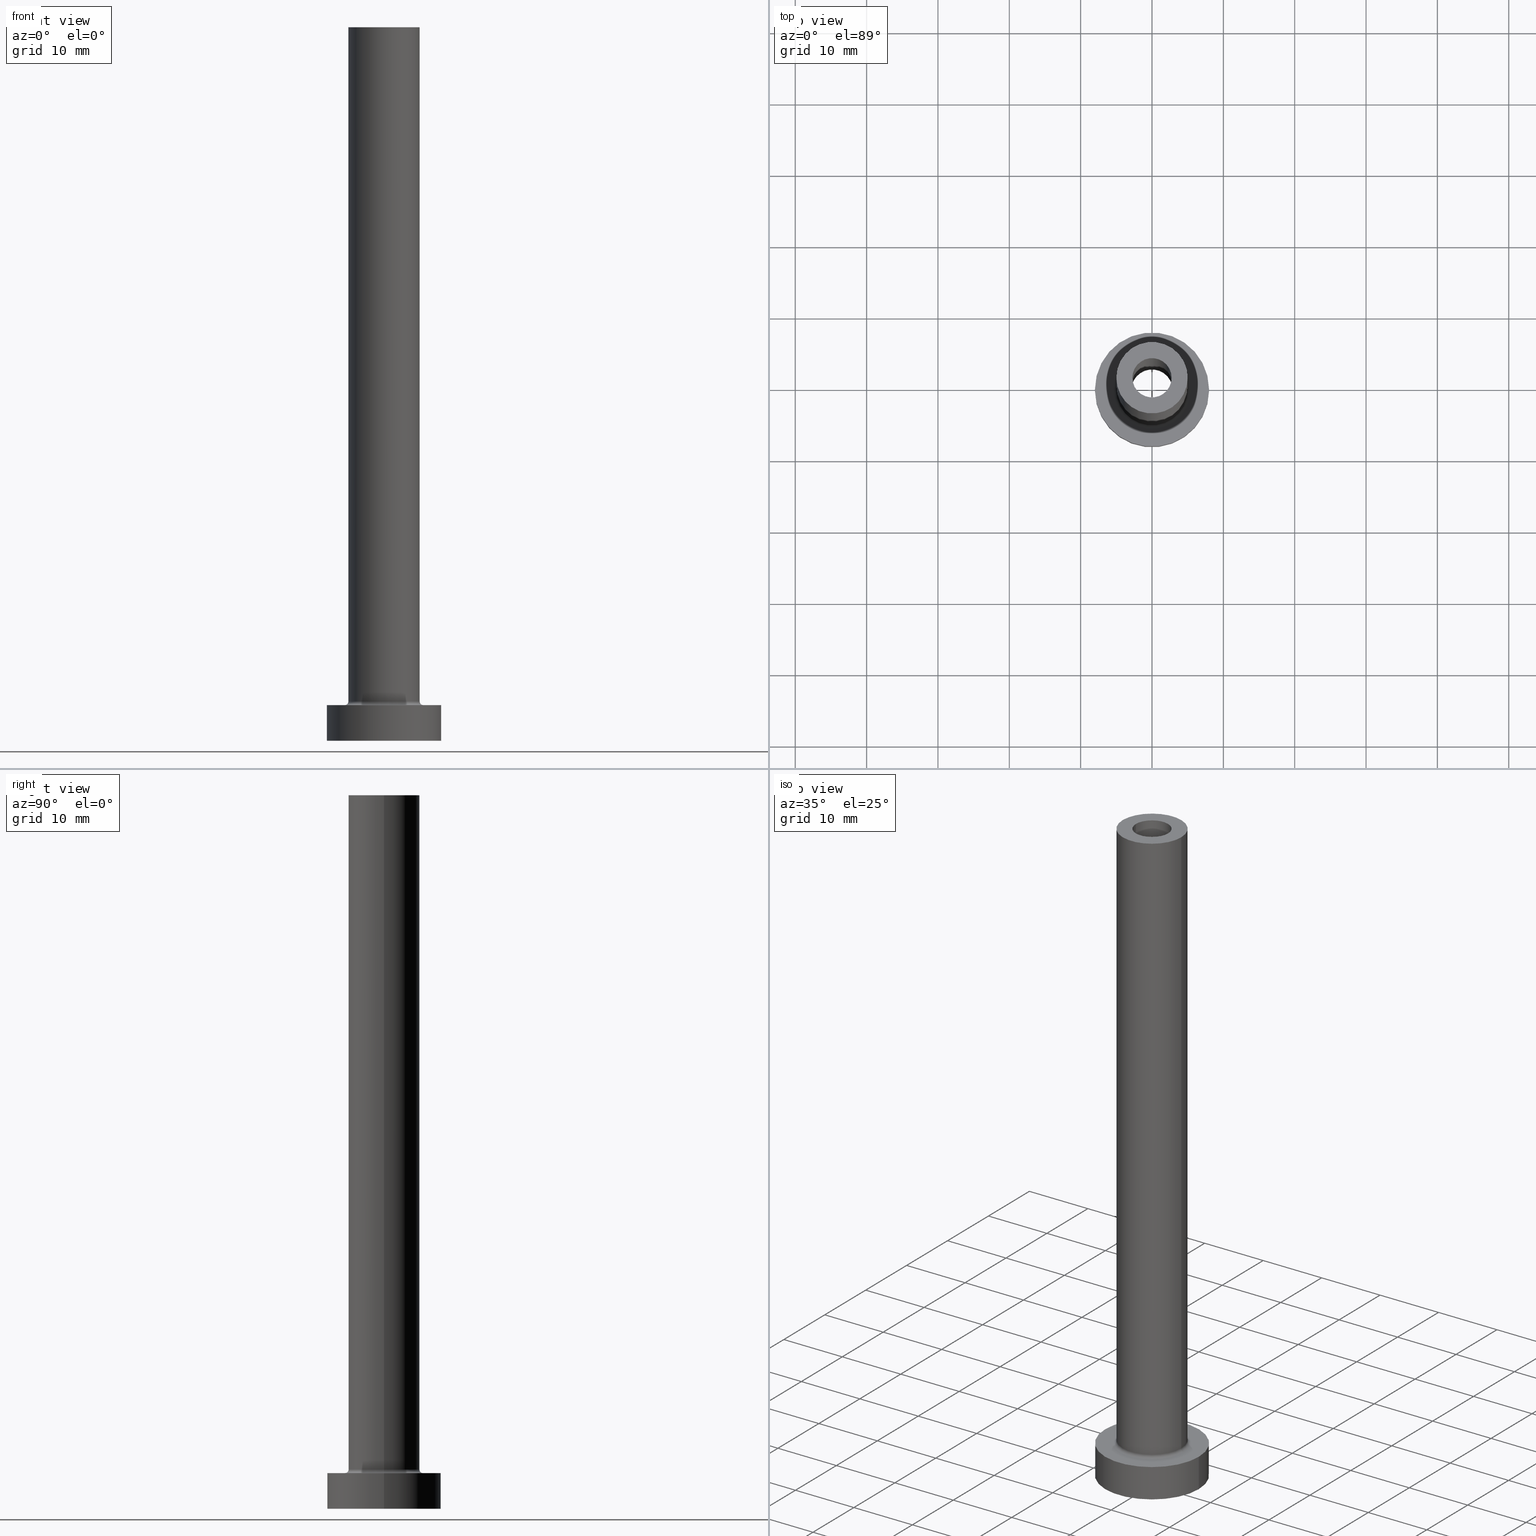
[diagram: canonical four-view strip — front | top / right | iso, engineering-drawing reading convention]
A machine part, canonical four-view strip (front | top / right | iso — engineering-drawing reading convention). The complete STEP part file that produces these views, byte-faithful:
ISO-10303-21;
HEADER;
FILE_DESCRIPTION (( 'STEP AP203' ),
    '1' );
FILE_NAME ('7f6f.STEP',
    '2023-02-13T16:15:36',
    ( '' ),
    ( '' ),
    'SwSTEP 2.0',
    'SolidWorks 2019',
    '' );
FILE_SCHEMA (( 'CONFIG_CONTROL_DESIGN' ));
ENDSEC;

DATA;
#1 = CARTESIAN_POINT ( 'NONE',  ( 0.000000000000000000, 0.000000000000000000, 5.000000000000000000 ) ) ;
#2 = EDGE_CURVE ( 'NONE', #168, #113, #225, .T. ) ;
#3 = FACE_BOUND ( 'NONE', #30, .T. ) ;
#4 = AXIS2_PLACEMENT_3D ( 'NONE', #99, #379, #311 ) ;
#5 = DIRECTION ( 'NONE',  ( 0.000000000000000000, 0.000000000000000000, -1.000000000000000000 ) ) ;
#6 = LOCAL_TIME ( 17, 15, 36.00000000000000000, #293 ) ;
#7 = DIRECTION ( 'NONE',  ( 1.000000000000000000, 0.000000000000000000, 0.000000000000000000 ) ) ;
#8 = DIRECTION ( 'NONE',  ( 0.000000000000000000, 0.000000000000000000, 1.000000000000000000 ) ) ;
#9 = ADVANCED_FACE ( 'NONE', ( #162 ), #310, .F. ) ;
#10 = PERSON_AND_ORGANIZATION_ROLE ( 'creator' ) ;
#11 = AXIS2_PLACEMENT_3D ( 'NONE', #121, #84, #48 ) ;
#12 = EDGE_LOOP ( 'NONE', ( #86, #351 ) ) ;
#13 = CYLINDRICAL_SURFACE ( 'NONE', #416, 5.000000000000000000 ) ;
#14 = APPROVAL_ROLE ( '' ) ;
#15 = AXIS2_PLACEMENT_3D ( 'NONE', #98, #200, #345 ) ;
#16 = ORIENTED_EDGE ( 'NONE', *, *, #60, .T. ) ;
#17 = PERSON_AND_ORGANIZATION_ROLE ( 'classification_officer' ) ;
#18 = EDGE_LOOP ( 'NONE', ( #284, #273 ) ) ;
#19 = EDGE_CURVE ( 'NONE', #363, #232, #431, .T. ) ;
#20 = CARTESIAN_POINT ( 'NONE',  ( 0.000000000000000000, 0.000000000000000000, 100.0000000000000000 ) ) ;
#21 = DIRECTION ( 'NONE',  ( 1.000000000000000000, 0.000000000000000000, 0.000000000000000000 ) ) ;
#22 =( LENGTH_UNIT ( ) NAMED_UNIT ( * ) SI_UNIT ( .MILLI., .METRE. ) );
#23 = ORIENTED_EDGE ( 'NONE', *, *, #136, .T. ) ;
#24 = ORIENTED_EDGE ( 'NONE', *, *, #442, .F. ) ;
#25 = AXIS2_PLACEMENT_3D ( 'NONE', #291, #109, #111 ) ;
#26 = DIRECTION ( 'NONE',  ( -0.000000000000000000, -0.000000000000000000, -1.000000000000000000 ) ) ;
#27 = DIRECTION ( 'NONE',  ( -0.000000000000000000, -0.000000000000000000, -1.000000000000000000 ) ) ;
#28 = ADVANCED_FACE ( 'NONE', ( #36 ), #13, .T. ) ;
#29 = DIRECTION ( 'NONE',  ( -1.000000000000000000, 1.224646799147351482E-16, 0.000000000000000000 ) ) ;
#30 = EDGE_LOOP ( 'NONE', ( #432, #356 ) ) ;
#31 = CLOSED_SHELL ( 'NONE', ( #9, #308, #151, #28, #386, #229, #286, #275, #107, #380, #302, #100, #413, #63 ) ) ;
#32 = DIRECTION ( 'NONE',  ( 0.000000000000000000, 0.000000000000000000, -1.000000000000000000 ) ) ;
#33 = DIRECTION ( 'NONE',  ( 1.224646799147353207E-16, 1.000000000000000000, -0.000000000000000000 ) ) ;
#34 = CIRCLE ( 'NONE', #71, 2.750000000000000000 ) ;
#35 = LINE ( 'NONE', #164, #347 ) ;
#36 = FACE_OUTER_BOUND ( 'NONE', #55, .T. ) ;
#37 = ORIENTED_EDGE ( 'NONE', *, *, #67, .T. ) ;
#38 = VECTOR ( 'NONE', #26, 1000.000000000000000 ) ;
#39 = VERTEX_POINT ( 'NONE', #262 ) ;
#40 = DIRECTION ( 'NONE',  ( 1.000000000000000000, 0.000000000000000000, -0.000000000000000000 ) ) ;
#41 = AXIS2_PLACEMENT_3D ( 'NONE', #247, #8, #329 ) ;
#42 = EDGE_CURVE ( 'NONE', #232, #363, #449, .T. ) ;
#43 = CARTESIAN_POINT ( 'NONE',  ( 8.000000000000000000, 9.797174393178825657E-16, 0.000000000000000000 ) ) ;
#44 = ORIENTED_EDGE ( 'NONE', *, *, #450, .T. ) ;
#45 = CIRCLE ( 'NONE', #238, 2.750000000000000000 ) ;
#46 = AXIS2_PLACEMENT_3D ( 'NONE', #256, #271, #91 ) ;
#47 = CARTESIAN_POINT ( 'NONE',  ( 0.000000000000000000, 0.000000000000000000, 100.0000000000000000 ) ) ;
#48 = DIRECTION ( 'NONE',  ( 1.000000000000000000, 0.000000000000000000, 0.000000000000000000 ) ) ;
#49 = ORIENTED_EDGE ( 'NONE', *, *, #366, .F. ) ;
#50 = PERSON_AND_ORGANIZATION ( #72, #406 ) ;
#51 = FACE_OUTER_BOUND ( 'NONE', #447, .T. ) ;
#52 = LINE ( 'NONE', #177, #80 ) ;
#53 = EDGE_LOOP ( 'NONE', ( #314, #409 ) ) ;
#54 = DIRECTION ( 'NONE',  ( 1.000000000000000000, 0.000000000000000000, 0.000000000000000000 ) ) ;
#55 = EDGE_LOOP ( 'NONE', ( #172, #337, #16, #294 ) ) ;
#56 = DIRECTION ( 'NONE',  ( -1.000000000000000000, 0.000000000000000000, 0.000000000000000000 ) ) ;
#57 = PRODUCT ( '7f6f', '7f6f', '', ( #362 ) ) ;
#58 = AXIS2_PLACEMENT_3D ( 'NONE', #381, #33, #29 ) ;
#59 = LOCAL_TIME ( 17, 15, 36.00000000000000000, #83 ) ;
#60 = EDGE_CURVE ( 'NONE', #287, #202, #234, .T. ) ;
#61 = FACE_OUTER_BOUND ( 'NONE', #120, .T. ) ;
#62 = APPLICATION_PROTOCOL_DEFINITION ( 'international standard', 'config_control_design', 1994, #160 ) ;
#63 = ADVANCED_FACE ( 'NONE', ( #61 ), #161, .F. ) ;
#64 = AXIS2_PLACEMENT_3D ( 'NONE', #277, #27, #95 ) ;
#65 = EDGE_LOOP ( 'NONE', ( #257, #333, #23, #261 ) ) ;
#66 = ORIENTED_EDGE ( 'NONE', *, *, #433, .F. ) ;
#67 = EDGE_CURVE ( 'NONE', #454, #434, #92, .T. ) ;
#68 = CC_DESIGN_APPROVAL ( #180, ( #343 ) ) ;
#69 = CARTESIAN_POINT ( 'NONE',  ( -5.000000000000000000, 0.000000000000000000, 100.0000000000000000 ) ) ;
#70 = APPROVAL ( #181, 'NEUR�EN�' ) ;
#71 = AXIS2_PLACEMENT_3D ( 'NONE', #240, #134, #283 ) ;
#72 = PERSON ( 'NEUR�EN�', 'NEUR�EN�', 'NEUR�EN�', ('NEUR�EN�'), ('NEUR�EN�'), ('NEUR�EN�') ) ;
#73 = EDGE_LOOP ( 'NONE', ( #359, #154 ) ) ;
#74 = DIRECTION ( 'NONE',  ( 0.000000000000000000, 0.000000000000000000, 1.000000000000000000 ) ) ;
#75 = ORIENTED_EDGE ( 'NONE', *, *, #392, .T. ) ;
#76 = CARTESIAN_POINT ( 'NONE',  ( 5.000000000000000000, 6.123233995736766282E-16, 5.500000000000005329 ) ) ;
#77 = COORDINATED_UNIVERSAL_TIME_OFFSET ( 1, 0, .AHEAD. ) ;
#78 = VERTEX_POINT ( 'NONE', #375 ) ;
#79 = CARTESIAN_POINT ( 'NONE',  ( 0.000000000000000000, 0.000000000000000000, 5.500000000000005329 ) ) ;
#80 = VECTOR ( 'NONE', #5, 1000.000000000000000 ) ;
#81 = PERSON_AND_ORGANIZATION_ROLE ( 'design_supplier' ) ;
#82 = DIRECTION ( 'NONE',  ( -0.000000000000000000, -0.000000000000000000, -1.000000000000000000 ) ) ;
#83 = COORDINATED_UNIVERSAL_TIME_OFFSET ( 1, 0, .AHEAD. ) ;
#84 = DIRECTION ( 'NONE',  ( 0.000000000000000000, 0.000000000000000000, 1.000000000000000000 ) ) ;
#85 = EDGE_CURVE ( 'NONE', #78, #287, #309, .T. ) ;
#86 = ORIENTED_EDGE ( 'NONE', *, *, #245, .T. ) ;
#87 = CARTESIAN_POINT ( 'NONE',  ( 8.000000000000000000, 9.797174393178825657E-16, 5.000000000000000000 ) ) ;
#88 = CARTESIAN_POINT ( 'NONE',  ( 0.000000000000000000, 0.000000000000000000, 63.20243866176396352 ) ) ;
#89 = VECTOR ( 'NONE', #205, 1000.000000000000000 ) ;
#90 = CARTESIAN_POINT ( 'NONE',  ( 0.000000000000000000, 0.000000000000000000, 55.00000000000000711 ) ) ;
#91 = DIRECTION ( 'NONE',  ( 1.000000000000000000, 0.000000000000000000, 0.000000000000000000 ) ) ;
#92 = LINE ( 'NONE', #196, #38 ) ;
#93 = EDGE_CURVE ( 'NONE', #202, #287, #208, .T. ) ;
#94 = ORIENTED_EDGE ( 'NONE', *, *, #433, .T. ) ;
#95 = DIRECTION ( 'NONE',  ( 1.000000000000000000, 0.000000000000000000, 0.000000000000000000 ) ) ;
#96 = DIRECTION ( 'NONE',  ( 0.000000000000000000, 0.000000000000000000, 1.000000000000000000 ) ) ;
#97 = AXIS2_PLACEMENT_3D ( 'NONE', #101, #239, #448 ) ;
#98 = CARTESIAN_POINT ( 'NONE',  ( 0.000000000000000000, 0.000000000000000000, 5.000000000000000000 ) ) ;
#99 = CARTESIAN_POINT ( 'NONE',  ( 0.000000000000000000, 0.000000000000000000, 55.00000000000000711 ) ) ;
#100 = ADVANCED_FACE ( 'NONE', ( #184 ), #296, .F. ) ;
#101 = CARTESIAN_POINT ( 'NONE',  ( 0.000000000000000000, 0.000000000000000000, 5.500000000000005329 ) ) ;
#102 = CARTESIAN_POINT ( 'NONE',  ( 0.000000000000000000, 0.000000000000000000, 5.000000000000000000 ) ) ;
#103 = DIRECTION ( 'NONE',  ( -0.000000000000000000, -0.000000000000000000, -1.000000000000000000 ) ) ;
#104 = VECTOR ( 'NONE', #280, 1000.000000000000000 ) ;
#105 = DIRECTION ( 'NONE',  ( -0.000000000000000000, -0.000000000000000000, -1.000000000000000000 ) ) ;
#106 = ORIENTED_EDGE ( 'NONE', *, *, #366, .T. ) ;
#107 = ADVANCED_FACE ( 'NONE', ( #51 ), #123, .T. ) ;
#108 = LINE ( 'NONE', #69, #89 ) ;
#109 = DIRECTION ( 'NONE',  ( 0.000000000000000000, 0.000000000000000000, 1.000000000000000000 ) ) ;
#110 = AXIS2_PLACEMENT_3D ( 'NONE', #269, #193, #340 ) ;
#111 = DIRECTION ( 'NONE',  ( 1.000000000000000000, 0.000000000000000000, 0.000000000000000000 ) ) ;
#112 = CIRCLE ( 'NONE', #372, 5.500000000000000000 ) ;
#113 = VERTEX_POINT ( 'NONE', #441 ) ;
#114 = FACE_BOUND ( 'NONE', #125, .T. ) ;
#115 = APPLICATION_CONTEXT ( 'configuration controlled 3d designs of mechanical parts and assemblies' ) ;
#116 = ORIENTED_EDGE ( 'NONE', *, *, #211, .F. ) ;
#117 = APPROVAL_ROLE ( '' ) ;
#118 = CIRCLE ( 'NONE', #217, 8.000000000000000000 ) ;
#119 = COORDINATED_UNIVERSAL_TIME_OFFSET ( 1, 0, .AHEAD. ) ;
#120 = EDGE_LOOP ( 'NONE', ( #325, #460, #254, #418 ) ) ;
#121 = CARTESIAN_POINT ( 'NONE',  ( 0.000000000000000000, 0.000000000000000000, 5.500000000000005329 ) ) ;
#122 = EDGE_CURVE ( 'NONE', #235, #183, #45, .T. ) ;
#123 = CYLINDRICAL_SURFACE ( 'NONE', #110, 5.000000000000000000 ) ;
#124 = APPROVAL_DATE_TIME ( #400, #180 ) ;
#125 = EDGE_LOOP ( 'NONE', ( #194, #130 ) ) ;
#126 =( NAMED_UNIT ( * ) SI_UNIT ( $, .STERADIAN. ) SOLID_ANGLE_UNIT ( ) );
#127 = DIRECTION ( 'NONE',  ( 0.000000000000000000, 0.000000000000000000, 1.000000000000000000 ) ) ;
#128 = DIRECTION ( 'NONE',  ( -1.000000000000000000, 0.000000000000000000, 0.000000000000000000 ) ) ;
#129 = LOCAL_TIME ( 17, 15, 36.00000000000000000, #223 ) ;
#130 = ORIENTED_EDGE ( 'NONE', *, *, #165, .F. ) ;
#131 = DIRECTION ( 'NONE',  ( 0.000000000000000000, 0.000000000000000000, -1.000000000000000000 ) ) ;
#132 = CARTESIAN_POINT ( 'NONE',  ( -2.750000000000000000, 0.000000000000000000, 55.00000000000000711 ) ) ;
#133 = DIRECTION ( 'NONE',  ( 1.000000000000000000, 0.000000000000000000, 0.000000000000000000 ) ) ;
#134 = DIRECTION ( 'NONE',  ( 0.000000000000000000, 0.000000000000000000, 1.000000000000000000 ) ) ;
#135 = AXIS2_PLACEMENT_3D ( 'NONE', #47, #335, #145 ) ;
#136 = EDGE_CURVE ( 'NONE', #287, #168, #456, .T. ) ;
#137 = FACE_OUTER_BOUND ( 'NONE', #186, .T. ) ;
#138 = DIRECTION ( 'NONE',  ( 0.000000000000000000, 0.000000000000000000, 1.000000000000000000 ) ) ;
#139 = EDGE_CURVE ( 'NONE', #202, #113, #320, .T. ) ;
#140 = LOCAL_TIME ( 17, 15, 36.00000000000000000, #77 ) ;
#141 = CARTESIAN_POINT ( 'NONE',  ( -2.899999999999999911, 0.000000000000000000, 55.00000000000000711 ) ) ;
#142 = DIRECTION ( 'NONE',  ( -1.000000000000000000, 0.000000000000000000, 0.000000000000000000 ) ) ;
#143 = AXIS2_PLACEMENT_3D ( 'NONE', #210, #288, #7 ) ;
#144 = EDGE_CURVE ( 'NONE', #183, #404, #414, .T. ) ;
#145 = DIRECTION ( 'NONE',  ( 1.000000000000000000, 0.000000000000000000, 0.000000000000000000 ) ) ;
#146 = FACE_OUTER_BOUND ( 'NONE', #444, .T. ) ;
#147 = CYLINDRICAL_SURFACE ( 'NONE', #209, 2.899999999999999911 ) ;
#148 = DATE_AND_TIME ( #216, #129 ) ;
#149 = CALENDAR_DATE ( 2023, 13, 2 ) ;
#150 = PERSON_AND_ORGANIZATION_ROLE ( 'design_owner' ) ;
#151 = ADVANCED_FACE ( 'NONE', ( #137 ), #167, .F. ) ;
#152 = DIRECTION ( 'NONE',  ( 0.000000000000000000, 0.000000000000000000, -1.000000000000000000 ) ) ;
#153 = CIRCLE ( 'NONE', #64, 2.899999999999999911 ) ;
#154 = ORIENTED_EDGE ( 'NONE', *, *, #19, .F. ) ;
#155 = APPROVAL_DATE_TIME ( #148, #455 ) ;
#156 = ORIENTED_EDGE ( 'NONE', *, *, #219, .F. ) ;
#157 = VERTEX_POINT ( 'NONE', #383 ) ;
#158 = DIRECTION ( 'NONE',  ( 1.000000000000000000, 0.000000000000000000, 0.000000000000000000 ) ) ;
#159 = AXIS2_PLACEMENT_3D ( 'NONE', #241, #384, #348 ) ;
#160 = APPLICATION_CONTEXT ( 'configuration controlled 3d designs of mechanical parts and assemblies' ) ;
#161 = CYLINDRICAL_SURFACE ( 'NONE', #295, 2.750000000000000000 ) ;
#162 = FACE_OUTER_BOUND ( 'NONE', #355, .T. ) ;
#163 = AXIS2_PLACEMENT_3D ( 'NONE', #360, #214, #391 ) ;
#164 = CARTESIAN_POINT ( 'NONE',  ( 2.899999999999999911, 3.551475717527323832E-16, 63.20243866176396352 ) ) ;
#165 = EDGE_CURVE ( 'NONE', #377, #157, #153, .T. ) ;
#166 = CARTESIAN_POINT ( 'NONE',  ( 5.500000000000000000, 0.000000000000000000, 5.000000000000002665 ) ) ;
#167 = TOROIDAL_SURFACE ( 'NONE', #97, 5.500000000000000000, 0.5000000000000000000 ) ;
#168 = VERTEX_POINT ( 'NONE', #166 ) ;
#169 = AXIS2_PLACEMENT_3D ( 'NONE', #207, #82, #54 ) ;
#170 = DIRECTION ( 'NONE',  ( 0.000000000000000000, 0.000000000000000000, -1.000000000000000000 ) ) ;
#171 = CC_DESIGN_PERSON_AND_ORGANIZATION_ASSIGNMENT ( #367, #17, ( #358 ) ) ;
#172 = ORIENTED_EDGE ( 'NONE', *, *, #199, .F. ) ;
#173 = CARTESIAN_POINT ( 'NONE',  ( 2.750000000000000000, 3.367778697655220519E-16, 100.0000000000000000 ) ) ;
#174 = AXIS2_PLACEMENT_3D ( 'NONE', #79, #218, #396 ) ;
#175 = CARTESIAN_POINT ( 'NONE',  ( 0.000000000000000000, 0.000000000000000000, 0.000000000000000000 ) ) ;
#176 = EDGE_CURVE ( 'NONE', #363, #377, #35, .T. ) ;
#177 = CARTESIAN_POINT ( 'NONE',  ( 2.750000000000000000, 3.367778697655220519E-16, 100.0000000000000000 ) ) ;
#178 = CC_DESIGN_APPROVAL ( #70, ( #203 ) ) ;
#179 = PLANE ( 'NONE',  #163 ) ;
#180 = APPROVAL ( #435, 'NEUR�EN�' ) ;
#181 = APPROVAL_STATUS ( 'not_yet_approved' ) ;
#182 = PERSON_AND_ORGANIZATION ( #72, #406 ) ;
#183 = VERTEX_POINT ( 'NONE', #282 ) ;
#184 = FACE_OUTER_BOUND ( 'NONE', #248, .T. ) ;
#185 = CARTESIAN_POINT ( 'NONE',  ( -2.899999999999999911, 0.000000000000000000, 63.20243866176396352 ) ) ;
#186 = EDGE_LOOP ( 'NONE', ( #429, #204, #438, #301 ) ) ;
#187 = APPROVAL_DATE_TIME ( #397, #70 ) ;
#188 = ORIENTED_EDGE ( 'NONE', *, *, #338, .T. ) ;
#189 = DIRECTION ( 'NONE',  ( -1.000000000000000000, 0.000000000000000000, 0.000000000000000000 ) ) ;
#190 = CIRCLE ( 'NONE', #169, 2.899999999999999911 ) ;
#191 = ORIENTED_EDGE ( 'NONE', *, *, #424, .T. ) ;
#192 = PERSON_AND_ORGANIZATION ( #72, #406 ) ;
#193 = DIRECTION ( 'NONE',  ( -0.000000000000000000, -0.000000000000000000, -1.000000000000000000 ) ) ;
#194 = ORIENTED_EDGE ( 'NONE', *, *, #450, .F. ) ;
#195 = CARTESIAN_POINT ( 'NONE',  ( 0.000000000000000000, 0.000000000000000000, 100.0000000000000000 ) ) ;
#196 = CARTESIAN_POINT ( 'NONE',  ( 8.000000000000000000, 9.797174393178825657E-16, 5.000000000000000000 ) ) ;
#197 = APPROVAL_PERSON_ORGANIZATION ( #50, #70, #14 ) ;
#198 = PLANE ( 'NONE',  #278 ) ;
#199 = EDGE_CURVE ( 'NONE', #78, #274, #321, .T. ) ;
#200 = DIRECTION ( 'NONE',  ( 0.000000000000000000, 0.000000000000000000, 1.000000000000000000 ) ) ;
#201 = VECTOR ( 'NONE', #373, 1000.000000000000000 ) ;
#202 = VERTEX_POINT ( 'NONE', #236 ) ;
#203 = PRODUCT_DEFINITION_FORMATION_WITH_SPECIFIED_SOURCE ( 'LIBOVOLN�', '', #57, .NOT_KNOWN. ) ;
#204 = ORIENTED_EDGE ( 'NONE', *, *, #139, .T. ) ;
#205 = DIRECTION ( 'NONE',  ( -0.000000000000000000, -0.000000000000000000, -1.000000000000000000 ) ) ;
#206 = ORIENTED_EDGE ( 'NONE', *, *, #176, .F. ) ;
#207 = CARTESIAN_POINT ( 'NONE',  ( 0.000000000000000000, 0.000000000000000000, 0.000000000000000000 ) ) ;
#208 = CIRCLE ( 'NONE', #11, 5.000000000000000000 ) ;
#209 = AXIS2_PLACEMENT_3D ( 'NONE', #88, #260, #399 ) ;
#210 = CARTESIAN_POINT ( 'NONE',  ( 0.000000000000000000, 0.000000000000000000, 100.0000000000000000 ) ) ;
#211 = EDGE_CURVE ( 'NONE', #454, #403, #459, .T. ) ;
#212 = CARTESIAN_POINT ( 'NONE',  ( 2.750000000000000000, 3.367778697655220519E-16, 55.00000000000000711 ) ) ;
#213 = ORIENTED_EDGE ( 'NONE', *, *, #237, .T. ) ;
#214 = DIRECTION ( 'NONE',  ( 0.000000000000000000, 0.000000000000000000, 1.000000000000000000 ) ) ;
#215 = CARTESIAN_POINT ( 'NONE',  ( 0.000000000000000000, 0.000000000000000000, 5.000000000000000000 ) ) ;
#216 = CALENDAR_DATE ( 2023, 13, 2 ) ;
#217 = AXIS2_PLACEMENT_3D ( 'NONE', #175, #285, #420 ) ;
#218 = DIRECTION ( 'NONE',  ( 0.000000000000000000, 0.000000000000000000, 1.000000000000000000 ) ) ;
#219 = EDGE_CURVE ( 'NONE', #39, #434, #118, .T. ) ;
#220 = FACE_OUTER_BOUND ( 'NONE', #426, .T. ) ;
#221 = ORIENTED_EDGE ( 'NONE', *, *, #85, .F. ) ;
#222 = SHAPE_DEFINITION_REPRESENTATION ( #440, #265 ) ;
#223 = COORDINATED_UNIVERSAL_TIME_OFFSET ( 1, 0, .AHEAD. ) ;
#224 = CALENDAR_DATE ( 2023, 13, 2 ) ;
#225 = CIRCLE ( 'NONE', #267, 5.500000000000000000 ) ;
#226 = ORIENTED_EDGE ( 'NONE', *, *, #93, .T. ) ;
#227 = APPROVAL_PERSON_ORGANIZATION ( #298, #180, #401 ) ;
#228 = LINE ( 'NONE', #185, #201 ) ;
#229 = ADVANCED_FACE ( 'NONE', ( #461 ), #352, .T. ) ;
#230 = DIRECTION ( 'NONE',  ( 0.000000000000000000, 0.000000000000000000, 1.000000000000000000 ) ) ;
#231 = DIRECTION ( 'NONE',  ( 0.000000000000000000, -1.000000000000000000, 0.000000000000000000 ) ) ;
#232 = VERTEX_POINT ( 'NONE', #141 ) ;
#233 = MANIFOLD_SOLID_BREP ( 'Odebrat vysunut�m4', #31 ) ;
#234 = CIRCLE ( 'NONE', #334, 5.000000000000000000 ) ;
#235 = VERTEX_POINT ( 'NONE', #173 ) ;
#236 = CARTESIAN_POINT ( 'NONE',  ( -5.000000000000000000, 0.000000000000000000, 5.500000000000005329 ) ) ;
#237 = EDGE_CURVE ( 'NONE', #274, #202, #108, .T. ) ;
#238 = AXIS2_PLACEMENT_3D ( 'NONE', #20, #263, #158 ) ;
#239 = DIRECTION ( 'NONE',  ( 0.000000000000000000, 0.000000000000000000, 1.000000000000000000 ) ) ;
#240 = CARTESIAN_POINT ( 'NONE',  ( 0.000000000000000000, 0.000000000000000000, 55.00000000000000711 ) ) ;
#241 = CARTESIAN_POINT ( 'NONE',  ( 0.000000000000000000, 0.000000000000000000, 55.00000000000000711 ) ) ;
#242 = CC_DESIGN_SECURITY_CLASSIFICATION ( #358, ( #203 ) ) ;
#243 = UNCERTAINTY_MEASURE_WITH_UNIT (LENGTH_MEASURE( 1.000000000000000082E-05 ), #22, 'distance_accuracy_value', 'NONE');
#244 = DIRECTION ( 'NONE',  ( -1.000000000000000000, 0.000000000000000000, 0.000000000000000000 ) ) ;
#245 = EDGE_CURVE ( 'NONE', #403, #454, #328, .T. ) ;
#246 =( GEOMETRIC_REPRESENTATION_CONTEXT ( 3 ) GLOBAL_UNCERTAINTY_ASSIGNED_CONTEXT ( ( #243 ) ) GLOBAL_UNIT_ASSIGNED_CONTEXT ( ( #22, #307, #126 ) ) REPRESENTATION_CONTEXT ( 'NONE', 'WORKASPACE' ) );
#247 = CARTESIAN_POINT ( 'NONE',  ( 0.000000000000000000, 0.000000000000000000, 5.000000000000000000 ) ) ;
#248 = EDGE_LOOP ( 'NONE', ( #206, #341, #188, #44 ) ) ;
#249 = DIRECTION ( 'NONE',  ( 1.000000000000000000, 0.000000000000000000, -0.000000000000000000 ) ) ;
#250 = DATE_AND_TIME ( #297, #270 ) ;
#251 = CC_DESIGN_PERSON_AND_ORGANIZATION_ASSIGNMENT ( #370, #81, ( #203 ) ) ;
#252 = AXIS2_PLACEMENT_3D ( 'NONE', #90, #127, #133 ) ;
#253 = FACE_BOUND ( 'NONE', #18, .T. ) ;
#254 = ORIENTED_EDGE ( 'NONE', *, *, #144, .T. ) ;
#255 = DATE_AND_TIME ( #430, #140 ) ;
#256 = CARTESIAN_POINT ( 'NONE',  ( 0.000000000000000000, 0.000000000000000000, 0.000000000000000000 ) ) ;
#257 = ORIENTED_EDGE ( 'NONE', *, *, #139, .F. ) ;
#258 = AXIS2_PLACEMENT_3D ( 'NONE', #407, #231, #170 ) ;
#259 = APPROVAL_PERSON_ORGANIZATION ( #264, #455, #117 ) ;
#260 = DIRECTION ( 'NONE',  ( 0.000000000000000000, 0.000000000000000000, -1.000000000000000000 ) ) ;
#261 = ORIENTED_EDGE ( 'NONE', *, *, #316, .F. ) ;
#262 = CARTESIAN_POINT ( 'NONE',  ( -8.000000000000000000, 0.000000000000000000, 0.000000000000000000 ) ) ;
#263 = DIRECTION ( 'NONE',  ( 0.000000000000000000, 0.000000000000000000, 1.000000000000000000 ) ) ;
#264 = PERSON_AND_ORGANIZATION ( #72, #406 ) ;
#265 = ADVANCED_BREP_SHAPE_REPRESENTATION ( '7f6f', ( #233, #46 ), #246 ) ;
#266 = ORIENTED_EDGE ( 'NONE', *, *, #245, .F. ) ;
#267 = AXIS2_PLACEMENT_3D ( 'NONE', #102, #408, #21 ) ;
#268 = CC_DESIGN_PERSON_AND_ORGANIZATION_ASSIGNMENT ( #332, #10, ( #203 ) ) ;
#269 = CARTESIAN_POINT ( 'NONE',  ( 0.000000000000000000, 0.000000000000000000, 100.0000000000000000 ) ) ;
#270 = LOCAL_TIME ( 17, 15, 36.00000000000000000, #119 ) ;
#271 = DIRECTION ( 'NONE',  ( 0.000000000000000000, 0.000000000000000000, 1.000000000000000000 ) ) ;
#272 = FACE_BOUND ( 'NONE', #281, .T. ) ;
#273 = ORIENTED_EDGE ( 'NONE', *, *, #316, .T. ) ;
#274 = VERTEX_POINT ( 'NONE', #326 ) ;
#275 = ADVANCED_FACE ( 'NONE', ( #114, #146 ), #179, .F. ) ;
#276 = CARTESIAN_POINT ( 'NONE',  ( 0.000000000000000000, 0.000000000000000000, 100.0000000000000000 ) ) ;
#277 = CARTESIAN_POINT ( 'NONE',  ( 0.000000000000000000, 0.000000000000000000, 0.000000000000000000 ) ) ;
#278 = AXIS2_PLACEMENT_3D ( 'NONE', #453, #96, #417 ) ;
#279 = DIRECTION ( 'NONE',  ( 1.000000000000000000, 0.000000000000000000, 0.000000000000000000 ) ) ;
#280 = DIRECTION ( 'NONE',  ( -0.000000000000000000, -0.000000000000000000, -1.000000000000000000 ) ) ;
#281 = EDGE_LOOP ( 'NONE', ( #94, #191 ) ) ;
#282 = CARTESIAN_POINT ( 'NONE',  ( -2.750000000000000000, 0.000000000000000000, 100.0000000000000000 ) ) ;
#283 = DIRECTION ( 'NONE',  ( 1.000000000000000000, 0.000000000000000000, 0.000000000000000000 ) ) ;
#284 = ORIENTED_EDGE ( 'NONE', *, *, #2, .T. ) ;
#285 = DIRECTION ( 'NONE',  ( 0.000000000000000000, 0.000000000000000000, 1.000000000000000000 ) ) ;
#286 = ADVANCED_FACE ( 'NONE', ( #253, #395 ), #292, .T. ) ;
#287 = VERTEX_POINT ( 'NONE', #76 ) ;
#288 = DIRECTION ( 'NONE',  ( 0.000000000000000000, 0.000000000000000000, 1.000000000000000000 ) ) ;
#289 = ORIENTED_EDGE ( 'NONE', *, *, #176, .T. ) ;
#290 = CARTESIAN_POINT ( 'NONE',  ( 0.000000000000000000, 0.000000000000000000, 5.000000000000000000 ) ) ;
#291 = CARTESIAN_POINT ( 'NONE',  ( 0.000000000000000000, 0.000000000000000000, 0.000000000000000000 ) ) ;
#292 = PLANE ( 'NONE',  #313 ) ;
#293 = COORDINATED_UNIVERSAL_TIME_OFFSET ( 1, 0, .AHEAD. ) ;
#294 = ORIENTED_EDGE ( 'NONE', *, *, #237, .F. ) ;
#295 = AXIS2_PLACEMENT_3D ( 'NONE', #369, #304, #189 ) ;
#296 = CYLINDRICAL_SURFACE ( 'NONE', #451, 2.899999999999999911 ) ;
#297 = CALENDAR_DATE ( 2023, 13, 2 ) ;
#298 = PERSON_AND_ORGANIZATION ( #72, #406 ) ;
#299 = CARTESIAN_POINT ( 'NONE',  ( 5.000000000000000000, 6.123233995736766282E-16, 100.0000000000000000 ) ) ;
#300 = CIRCLE ( 'NONE', #135, 2.750000000000000000 ) ;
#301 = ORIENTED_EDGE ( 'NONE', *, *, #136, .F. ) ;
#302 = ADVANCED_FACE ( 'NONE', ( #428 ), #378, .F. ) ;
#303 = ORIENTED_EDGE ( 'NONE', *, *, #350, .T. ) ;
#304 = DIRECTION ( 'NONE',  ( 0.000000000000000000, 0.000000000000000000, -1.000000000000000000 ) ) ;
#305 = CARTESIAN_POINT ( 'NONE',  ( 0.000000000000000000, 0.000000000000000000, 63.20243866176396352 ) ) ;
#306 = VERTEX_POINT ( 'NONE', #212 ) ;
#307 =( NAMED_UNIT ( * ) PLANE_ANGLE_UNIT ( ) SI_UNIT ( $, .RADIAN. ) );
#308 = ADVANCED_FACE ( 'NONE', ( #220 ), #147, .F. ) ;
#309 = LINE ( 'NONE', #299, #410 ) ;
#310 = CYLINDRICAL_SURFACE ( 'NONE', #382, 2.750000000000000000 ) ;
#311 = DIRECTION ( 'NONE',  ( 1.000000000000000000, 0.000000000000000000, 0.000000000000000000 ) ) ;
#312 = DIRECTION ( 'NONE',  ( 0.000000000000000000, 0.000000000000000000, -1.000000000000000000 ) ) ;
#313 = AXIS2_PLACEMENT_3D ( 'NONE', #290, #74, #249 ) ;
#314 = ORIENTED_EDGE ( 'NONE', *, *, #442, .T. ) ;
#315 = CARTESIAN_POINT ( 'NONE',  ( -2.750000000000000000, 0.000000000000000000, 100.0000000000000000 ) ) ;
#316 = EDGE_CURVE ( 'NONE', #113, #168, #112, .T. ) ;
#317 = PLANE ( 'NONE',  #445 ) ;
#318 = CARTESIAN_POINT ( 'NONE',  ( -8.000000000000000000, 0.000000000000000000, 5.000000000000000000 ) ) ;
#319 = CARTESIAN_POINT ( 'NONE',  ( -8.000000000000000000, 0.000000000000000000, 5.000000000000000000 ) ) ;
#320 = CIRCLE ( 'NONE', #58, 0.5000000000000004441 ) ;
#321 = CIRCLE ( 'NONE', #421, 5.000000000000000000 ) ;
#322 = CC_DESIGN_DATE_AND_TIME_ASSIGNMENT ( #255, #336, ( #343 ) ) ;
#323 = CARTESIAN_POINT ( 'NONE',  ( 0.000000000000000000, 0.000000000000000000, 5.000000000000000000 ) ) ;
#324 = CYLINDRICAL_SURFACE ( 'NONE', #354, 8.000000000000000000 ) ;
#325 = ORIENTED_EDGE ( 'NONE', *, *, #346, .F. ) ;
#326 = CARTESIAN_POINT ( 'NONE',  ( -5.000000000000000000, 0.000000000000000000, 100.0000000000000000 ) ) ;
#327 = APPROVAL_STATUS ( 'not_yet_approved' ) ;
#328 = CIRCLE ( 'NONE', #41, 8.000000000000000000 ) ;
#329 = DIRECTION ( 'NONE',  ( 1.000000000000000000, 0.000000000000000000, 0.000000000000000000 ) ) ;
#330 = CARTESIAN_POINT ( 'NONE',  ( 2.899999999999999911, 3.551475717527323832E-16, 55.00000000000000711 ) ) ;
#331 = ORIENTED_EDGE ( 'NONE', *, *, #67, .F. ) ;
#332 = PERSON_AND_ORGANIZATION ( #72, #406 ) ;
#333 = ORIENTED_EDGE ( 'NONE', *, *, #60, .F. ) ;
#334 = AXIS2_PLACEMENT_3D ( 'NONE', #374, #230, #364 ) ;
#335 = DIRECTION ( 'NONE',  ( 0.000000000000000000, 0.000000000000000000, 1.000000000000000000 ) ) ;
#336 = DATE_TIME_ROLE ( 'creation_date' ) ;
#337 = ORIENTED_EDGE ( 'NONE', *, *, #85, .T. ) ;
#338 = EDGE_CURVE ( 'NONE', #232, #157, #228, .T. ) ;
#339 = CIRCLE ( 'NONE', #4, 2.750000000000000000 ) ;
#340 = DIRECTION ( 'NONE',  ( -1.000000000000000000, 0.000000000000000000, 0.000000000000000000 ) ) ;
#341 = ORIENTED_EDGE ( 'NONE', *, *, #19, .T. ) ;
#342 = SECURITY_CLASSIFICATION_LEVEL ( 'unclassified' ) ;
#343 = PRODUCT_DEFINITION ( 'NEZN�M�', '', #203, #457 ) ;
#344 = ORIENTED_EDGE ( 'NONE', *, *, #219, .T. ) ;
#345 = DIRECTION ( 'NONE',  ( 1.000000000000000000, 0.000000000000000000, 0.000000000000000000 ) ) ;
#346 = EDGE_CURVE ( 'NONE', #235, #306, #52, .T. ) ;
#347 = VECTOR ( 'NONE', #312, 1000.000000000000000 ) ;
#348 = DIRECTION ( 'NONE',  ( 1.000000000000000000, 0.000000000000000000, 0.000000000000000000 ) ) ;
#349 = CARTESIAN_POINT ( 'NONE',  ( 0.000000000000000000, 0.000000000000000000, 100.0000000000000000 ) ) ;
#350 = EDGE_CURVE ( 'NONE', #183, #235, #300, .T. ) ;
#351 = ORIENTED_EDGE ( 'NONE', *, *, #211, .T. ) ;
#352 = CYLINDRICAL_SURFACE ( 'NONE', #425, 8.000000000000000000 ) ;
#353 = FACE_OUTER_BOUND ( 'NONE', #53, .T. ) ;
#354 = AXIS2_PLACEMENT_3D ( 'NONE', #1, #103, #244 ) ;
#355 = EDGE_LOOP ( 'NONE', ( #303, #427, #66, #452 ) ) ;
#356 = ORIENTED_EDGE ( 'NONE', *, *, #122, .F. ) ;
#357 = PERSON_AND_ORGANIZATION_ROLE ( 'creator' ) ;
#358 = SECURITY_CLASSIFICATION ( '', '', #342 ) ;
#359 = ORIENTED_EDGE ( 'NONE', *, *, #42, .F. ) ;
#360 = CARTESIAN_POINT ( 'NONE',  ( 0.000000000000000000, 0.000000000000000000, 0.000000000000000000 ) ) ;
#361 = ORIENTED_EDGE ( 'NONE', *, *, #338, .F. ) ;
#362 = MECHANICAL_CONTEXT ( 'NONE', #115, 'mechanical' ) ;
#363 = VERTEX_POINT ( 'NONE', #330 ) ;
#364 = DIRECTION ( 'NONE',  ( 1.000000000000000000, 0.000000000000000000, 0.000000000000000000 ) ) ;
#365 = DIRECTION ( 'NONE',  ( -0.000000000000000000, -0.000000000000000000, -1.000000000000000000 ) ) ;
#366 = EDGE_CURVE ( 'NONE', #434, #39, #436, .T. ) ;
#367 = PERSON_AND_ORGANIZATION ( #72, #406 ) ;
#368 = PRODUCT_RELATED_PRODUCT_CATEGORY ( 'detail', '', ( #57 ) ) ;
#369 = CARTESIAN_POINT ( 'NONE',  ( 0.000000000000000000, 0.000000000000000000, 100.0000000000000000 ) ) ;
#370 = PERSON_AND_ORGANIZATION ( #72, #406 ) ;
#371 = VECTOR ( 'NONE', #32, 1000.000000000000000 ) ;
#372 = AXIS2_PLACEMENT_3D ( 'NONE', #215, #365, #393 ) ;
#373 = DIRECTION ( 'NONE',  ( 0.000000000000000000, 0.000000000000000000, -1.000000000000000000 ) ) ;
#374 = CARTESIAN_POINT ( 'NONE',  ( 0.000000000000000000, 0.000000000000000000, 5.500000000000005329 ) ) ;
#375 = CARTESIAN_POINT ( 'NONE',  ( 5.000000000000000000, 6.123233995736766282E-16, 100.0000000000000000 ) ) ;
#376 = EDGE_LOOP ( 'NONE', ( #116, #37, #106, #387 ) ) ;
#377 = VERTEX_POINT ( 'NONE', #458 ) ;
#378 = TOROIDAL_SURFACE ( 'NONE', #174, 5.500000000000000000, 0.5000000000000000000 ) ;
#379 = DIRECTION ( 'NONE',  ( 0.000000000000000000, 0.000000000000000000, 1.000000000000000000 ) ) ;
#380 = ADVANCED_FACE ( 'NONE', ( #3, #353 ), #317, .T. ) ;
#381 = CARTESIAN_POINT ( 'NONE',  ( -5.500000000000000000, 6.735557395310442023E-16, 5.500000000000005329 ) ) ;
#382 = AXIS2_PLACEMENT_3D ( 'NONE', #446, #131, #422 ) ;
#383 = CARTESIAN_POINT ( 'NONE',  ( -2.899999999999999911, 0.000000000000000000, 0.000000000000000000 ) ) ;
#384 = DIRECTION ( 'NONE',  ( 0.000000000000000000, 0.000000000000000000, 1.000000000000000000 ) ) ;
#385 = CC_DESIGN_APPROVAL ( #455, ( #358 ) ) ;
#386 = ADVANCED_FACE ( 'NONE', ( #423 ), #324, .T. ) ;
#387 = ORIENTED_EDGE ( 'NONE', *, *, #392, .F. ) ;
#388 = LINE ( 'NONE', #318, #104 ) ;
#389 = CIRCLE ( 'NONE', #143, 5.000000000000000000 ) ;
#390 = EDGE_LOOP ( 'NONE', ( #331, #266, #75, #344 ) ) ;
#391 = DIRECTION ( 'NONE',  ( 1.000000000000000000, 0.000000000000000000, -0.000000000000000000 ) ) ;
#392 = EDGE_CURVE ( 'NONE', #403, #39, #388, .T. ) ;
#393 = DIRECTION ( 'NONE',  ( 1.000000000000000000, 0.000000000000000000, 0.000000000000000000 ) ) ;
#394 = DATE_TIME_ROLE ( 'classification_date' ) ;
#395 = FACE_OUTER_BOUND ( 'NONE', #12, .T. ) ;
#396 = DIRECTION ( 'NONE',  ( 1.000000000000000000, 0.000000000000000000, 0.000000000000000000 ) ) ;
#397 = DATE_AND_TIME ( #149, #6 ) ;
#398 = CC_DESIGN_PERSON_AND_ORGANIZATION_ASSIGNMENT ( #192, #357, ( #343 ) ) ;
#399 = DIRECTION ( 'NONE',  ( -1.000000000000000000, 0.000000000000000000, 0.000000000000000000 ) ) ;
#400 = DATE_AND_TIME ( #224, #59 ) ;
#401 = APPROVAL_ROLE ( '' ) ;
#402 = CC_DESIGN_DATE_AND_TIME_ASSIGNMENT ( #250, #394, ( #358 ) ) ;
#403 = VERTEX_POINT ( 'NONE', #319 ) ;
#404 = VERTEX_POINT ( 'NONE', #132 ) ;
#405 = DIRECTION ( 'NONE',  ( -0.000000000000000000, -0.000000000000000000, -1.000000000000000000 ) ) ;
#406 = ORGANIZATION ( 'NEUR�EN�', 'NEUR�EN�', '' ) ;
#407 = CARTESIAN_POINT ( 'NONE',  ( 5.500000000000000000, 0.000000000000000000, 5.500000000000005329 ) ) ;
#408 = DIRECTION ( 'NONE',  ( -0.000000000000000000, -0.000000000000000000, -1.000000000000000000 ) ) ;
#409 = ORIENTED_EDGE ( 'NONE', *, *, #199, .T. ) ;
#410 = VECTOR ( 'NONE', #437, 1000.000000000000000 ) ;
#411 = FACE_OUTER_BOUND ( 'NONE', #73, .T. ) ;
#412 = DIRECTION ( 'NONE',  ( 0.000000000000000000, 0.000000000000000000, 1.000000000000000000 ) ) ;
#413 = ADVANCED_FACE ( 'NONE', ( #272, #411 ), #198, .F. ) ;
#414 = LINE ( 'NONE', #315, #371 ) ;
#415 = ORIENTED_EDGE ( 'NONE', *, *, #42, .T. ) ;
#416 = AXIS2_PLACEMENT_3D ( 'NONE', #195, #405, #56 ) ;
#417 = DIRECTION ( 'NONE',  ( 1.000000000000000000, 0.000000000000000000, -0.000000000000000000 ) ) ;
#418 = ORIENTED_EDGE ( 'NONE', *, *, #424, .F. ) ;
#419 = CC_DESIGN_PERSON_AND_ORGANIZATION_ASSIGNMENT ( #182, #150, ( #57 ) ) ;
#420 = DIRECTION ( 'NONE',  ( 1.000000000000000000, 0.000000000000000000, 0.000000000000000000 ) ) ;
#421 = AXIS2_PLACEMENT_3D ( 'NONE', #276, #412, #279 ) ;
#422 = DIRECTION ( 'NONE',  ( -1.000000000000000000, 0.000000000000000000, 0.000000000000000000 ) ) ;
#423 = FACE_OUTER_BOUND ( 'NONE', #376, .T. ) ;
#424 = EDGE_CURVE ( 'NONE', #306, #404, #339, .T. ) ;
#425 = AXIS2_PLACEMENT_3D ( 'NONE', #323, #105, #142 ) ;
#426 = EDGE_LOOP ( 'NONE', ( #415, #289, #439, #361 ) ) ;
#427 = ORIENTED_EDGE ( 'NONE', *, *, #346, .T. ) ;
#428 = FACE_OUTER_BOUND ( 'NONE', #65, .T. ) ;
#429 = ORIENTED_EDGE ( 'NONE', *, *, #93, .F. ) ;
#430 = CALENDAR_DATE ( 2023, 13, 2 ) ;
#431 = CIRCLE ( 'NONE', #159, 2.899999999999999911 ) ;
#432 = ORIENTED_EDGE ( 'NONE', *, *, #350, .F. ) ;
#433 = EDGE_CURVE ( 'NONE', #404, #306, #34, .T. ) ;
#434 = VERTEX_POINT ( 'NONE', #43 ) ;
#435 = APPROVAL_STATUS ( 'not_yet_approved' ) ;
#436 = CIRCLE ( 'NONE', #25, 8.000000000000000000 ) ;
#437 = DIRECTION ( 'NONE',  ( -0.000000000000000000, -0.000000000000000000, -1.000000000000000000 ) ) ;
#438 = ORIENTED_EDGE ( 'NONE', *, *, #2, .F. ) ;
#439 = ORIENTED_EDGE ( 'NONE', *, *, #165, .T. ) ;
#440 = PRODUCT_DEFINITION_SHAPE ( 'NONE', 'NONE',  #343 ) ;
#441 = CARTESIAN_POINT ( 'NONE',  ( -5.500000000000000000, 6.735557395310442023E-16, 5.000000000000002665 ) ) ;
#442 = EDGE_CURVE ( 'NONE', #274, #78, #389, .T. ) ;
#443 = APPLICATION_PROTOCOL_DEFINITION ( 'international standard', 'config_control_design', 1994, #115 ) ;
#444 = EDGE_LOOP ( 'NONE', ( #156, #49 ) ) ;
#445 = AXIS2_PLACEMENT_3D ( 'NONE', #349, #138, #40 ) ;
#446 = CARTESIAN_POINT ( 'NONE',  ( 0.000000000000000000, 0.000000000000000000, 100.0000000000000000 ) ) ;
#447 = EDGE_LOOP ( 'NONE', ( #221, #24, #213, #226 ) ) ;
#448 = DIRECTION ( 'NONE',  ( 1.000000000000000000, 0.000000000000000000, 0.000000000000000000 ) ) ;
#449 = CIRCLE ( 'NONE', #252, 2.899999999999999911 ) ;
#450 = EDGE_CURVE ( 'NONE', #157, #377, #190, .T. ) ;
#451 = AXIS2_PLACEMENT_3D ( 'NONE', #305, #152, #128 ) ;
#452 = ORIENTED_EDGE ( 'NONE', *, *, #144, .F. ) ;
#453 = CARTESIAN_POINT ( 'NONE',  ( 0.000000000000000000, 0.000000000000000000, 55.00000000000000711 ) ) ;
#454 = VERTEX_POINT ( 'NONE', #87 ) ;
#455 = APPROVAL ( #327, 'NEUR�EN�' ) ;
#456 = CIRCLE ( 'NONE', #258, 0.5000000000000004441 ) ;
#457 = DESIGN_CONTEXT ( 'detailed design', #160, 'design' ) ;
#458 = CARTESIAN_POINT ( 'NONE',  ( 2.899999999999999911, 3.551475717527323832E-16, 0.000000000000000000 ) ) ;
#459 = CIRCLE ( 'NONE', #15, 8.000000000000000000 ) ;
#460 = ORIENTED_EDGE ( 'NONE', *, *, #122, .T. ) ;
#461 = FACE_OUTER_BOUND ( 'NONE', #390, .T. ) ;
ENDSEC;
END-ISO-10303-21;
